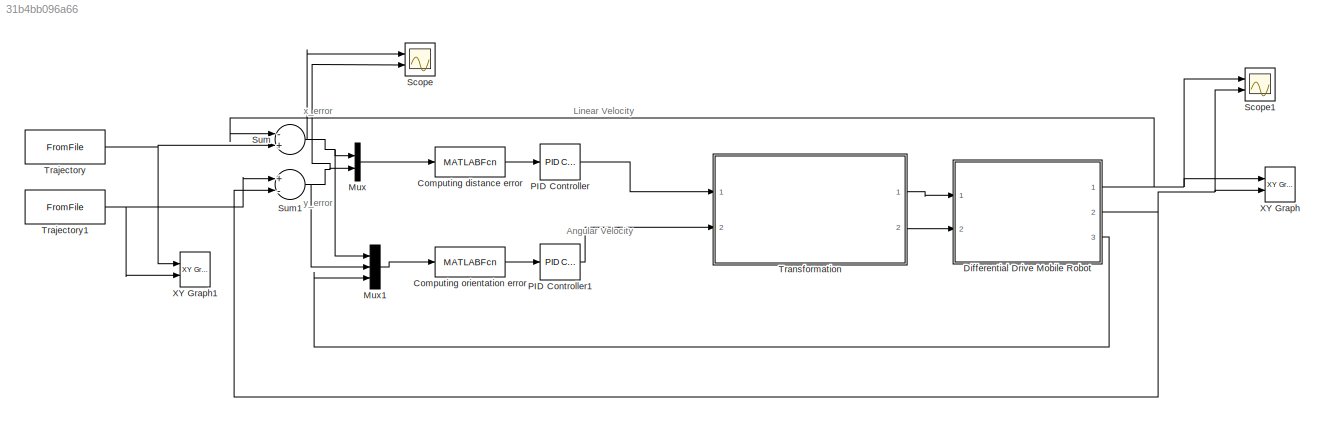
MODEL slx_31b4bb096a66
KIND model
CONFIG AbsTol = auto
CONFIG FixedStep = 0.1
CONFIG MaxStep = auto
CONFIG MinStep = auto
CONFIG RelTol = 1e-3
CONFIG SampleTimeConstraint = Unconstrained
CONFIG Solver = ode3
CONFIG SolverMode = Auto
CONFIG SolverName = ode3
CONFIG StartTime = 0.0
CONFIG StopTime = 1000
BLOCK [MATLABFcn] Computing distance error
  MATLABFcn = distance_error
  OutputDimensions = 1
  Ports = [1, 1]
BLOCK [MATLABFcn] Computing orientation error
  MATLABFcn = orientation_error
  OutputDimensions = 1
  Ports = [1, 1]
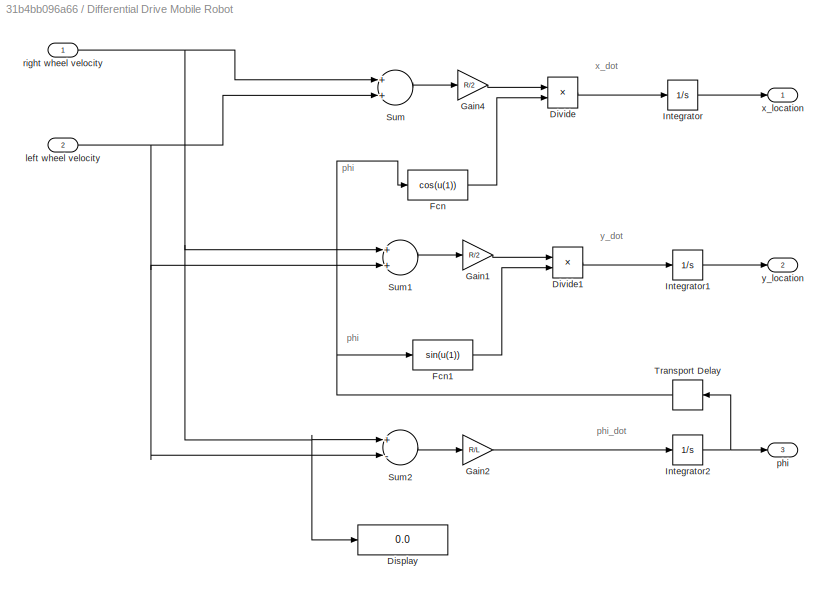
BLOCK [SubSystem] Differential Drive Mobile Robot
  Ports = [2, 3]
  RequestExecContextInheritance = off
BLOCK [Display] Differential Drive Mobile Robot/Display
  Decimation = 1
  Ports = [1]
BLOCK [Product] Differential Drive Mobile Robot/Divide
  InputSameDT = off
  Inputs = **
  OutDataTypeStr = Inherit: Inherit via internal rule
  Ports = [2, 1]
  RndMeth = Floor
  SaturateOnIntegerOverflow = off
BLOCK [Product] Differential Drive Mobile Robot/Divide1
  InputSameDT = off
  Inputs = **
  OutDataTypeStr = Inherit: Inherit via internal rule
  Ports = [2, 1]
  RndMeth = Floor
  SaturateOnIntegerOverflow = off
BLOCK [Fcn] Differential Drive Mobile Robot/Fcn
  Expr = cos(u(1))
BLOCK [Fcn] Differential Drive Mobile Robot/Fcn1
  Expr = sin(u(1))
BLOCK [Gain] Differential Drive Mobile Robot/Gain1
  Gain = R/2
  OutDataTypeStr = Inherit: Inherit via internal rule
  ParamDataTypeStr = Inherit: Inherit via internal rule
  SaturateOnIntegerOverflow = off
BLOCK [Gain] Differential Drive Mobile Robot/Gain2
  Gain = R/L
  OutDataTypeStr = Inherit: Inherit via internal rule
  ParamDataTypeStr = Inherit: Inherit via internal rule
  SaturateOnIntegerOverflow = off
BLOCK [Gain] Differential Drive Mobile Robot/Gain4
  Gain = R/2
  OutDataTypeStr = Inherit: Inherit via internal rule
  ParamDataTypeStr = Inherit: Inherit via internal rule
  SaturateOnIntegerOverflow = off
BLOCK [Integrator] Differential Drive Mobile Robot/Integrator
  Ports = [1, 1]
BLOCK [Integrator] Differential Drive Mobile Robot/Integrator1
  Ports = [1, 1]
BLOCK [Integrator] Differential Drive Mobile Robot/Integrator2
  Ports = [1, 1]
BLOCK [Sum] Differential Drive Mobile Robot/Sum
  InputSameDT = off
  OutDataTypeStr = Inherit: Inherit via internal rule
  Ports = [2, 1]
  SaturateOnIntegerOverflow = off
BLOCK [Sum] Differential Drive Mobile Robot/Sum1
  InputSameDT = off
  OutDataTypeStr = Inherit: Inherit via internal rule
  Ports = [2, 1]
  SaturateOnIntegerOverflow = off
BLOCK [Sum] Differential Drive Mobile Robot/Sum2
  InputSameDT = off
  Inputs = +-
  OutDataTypeStr = Inherit: Inherit via internal rule
  Ports = [2, 1]
  SaturateOnIntegerOverflow = off
BLOCK [TransportDelay] Differential Drive Mobile Robot/Transport Delay
  Ports = [1, 1]
BLOCK [Inport] Differential Drive Mobile Robot/left wheel velocity
  IconDisplay = Port number
  Port = 2
BLOCK [Outport] Differential Drive Mobile Robot/phi
  IconDisplay = Port number
  Port = 3
BLOCK [Inport] Differential Drive Mobile Robot/right wheel velocity
  IconDisplay = Port number
BLOCK [Outport] Differential Drive Mobile Robot/x_location
  IconDisplay = Port number
BLOCK [Outport] Differential Drive Mobile Robot/y_location
  IconDisplay = Port number
  Port = 2
BLOCK [Mux] Mux
  DisplayOption = bar
  Inputs = 2
  Ports = [2, 1]
BLOCK [Mux] Mux1
  DisplayOption = bar
  Inputs = 3
  Ports = [3, 1]
BLOCK [Reference] PID Controller  REF=simulink/Continuous/PID Controller
  AntiWindupMode = none
  Controller = PID
  ControllerParametersSource = internal
  D = -0.0162580875537082
  DGainOutDataTypeStr = Inherit: Inherit via internal rule
  DOutDataTypeStr = Inherit: Inherit via internal rule
  DOutMax = []
  DOutMin = []
  DParamDataTypeStr = Inherit: Inherit via internal rule
  DParamMax = []
  DParamMin = []
  DProdOutDataTypeStr = Inherit: Inherit via internal rule
  DifferentiatorICPrevScaledInput = 0
  DifferentiatorOutDataTypeStr = Inherit: Inherit via internal rule
  DifferentiatorOutMax = []
  DifferentiatorOutMin = []
  ExternalReset = none
  FilterContinuousStateAttributes = ''
  FilterMethod = Forward Euler
  FilterOutDataTypeStr = Inherit: Inherit via internal rule
  FilterOutMax = []
  FilterOutMin = []
  FilterRTWStateStorageClass = Auto
  FilterStateMustResolveToSignalObject = off
  Form = Parallel
  I = 0.00100836074716022
  IGainOutDataTypeStr = Inherit: Inherit via internal rule
  IOutDataTypeStr = Inherit: Inherit via internal rule
  IOutMax = []
  IOutMin = []
  IParamDataTypeStr = Inherit: Inherit via internal rule
  IParamMax = []
  IParamMin = []
  IProdOutDataTypeStr = Inherit: Inherit via internal rule
  IgnoreLimit = off
  InitialConditionForFilter = 0
  InitialConditionForIntegrator = 0
  InitialConditionSource = internal
  IntegratorContinuousStateAttributes = ''
  IntegratorMethod = Forward Euler
  IntegratorOutDataTypeStr = Inherit: Inherit via internal rule
  IntegratorOutMax = []
  IntegratorOutMin = []
  IntegratorRTWStateStorageClass = Auto
  IntegratorStateMustResolveToSignalObject = off
  Kb = 1
  KbOutDataTypeStr = Inherit: Inherit via internal rule
  KbOutMax = []
  KbOutMin = []
  KbParamDataTypeStr = Inherit: Inherit via internal rule
  KbParamMax = []
  KbParamMin = []
  Kt = 1
  KtOutDataTypeStr = Inherit: Inherit via internal rule
  KtOutMax = []
  KtOutMin = []
  KtParamDataTypeStr = Inherit: Inherit via internal rule
  KtParamMax = []
  KtParamMin = []
  LimitOutput = off
  LinearizeAsGain = on
  LockScale = off
  LowerSaturationLimit = -inf
  N = 1.13639880092487
  NGainOutDataTypeStr = Inherit: Inherit via internal rule
  NOutDataTypeStr = Inherit: Inherit via internal rule
  NOutMax = []
  NOutMin = []
  NParamDataTypeStr = Inherit: Inherit via internal rule
  NParamMax = []
  NParamMin = []
  NProdOutDataTypeStr = Inherit: Inherit via internal rule
  P = 0.0504359921516874
  PGainOutDataTypeStr = Inherit: Inherit via internal rule
  POutDataTypeStr = Inherit: Inherit via internal rule
  POutMax = []
  POutMin = []
  PParamDataTypeStr = Inherit: Inherit via internal rule
  PParamMax = []
  PParamMin = []
  PProdOutDataTypeStr = Inherit: Inherit via internal rule
  Ports = [1, 1]
  RndMeth = Floor
  SampleTime = -1
  SaturateOnIntegerOverflow = off
  SaturationOutDataTypeStr = Inherit: Same as input
  SaturationOutMax = []
  SaturationOutMin = []
  SourceBlock = simulink/Continuous/PID Controller
  SourceType = PID 1dof
  SumAccumDataTypeStr = Inherit: Inherit via internal rule
  SumDAccumDataTypeStr = Inherit: Inherit via internal rule
  SumDOutDataTypeStr = Inherit: Inherit via internal rule
  SumDOutMax = []
  SumDOutMin = []
  SumI1AccumDataTypeStr = Inherit: Inherit via internal rule
  SumI1OutDataTypeStr = Inherit: Inherit via internal rule
  SumI1OutMax = []
  SumI1OutMin = []
  SumI2AccumDataTypeStr = Inherit: Inherit via internal rule
  SumI2OutDataTypeStr = Inherit: Inherit via internal rule
  SumI2OutMax = []
  SumI2OutMin = []
  SumI3AccumDataTypeStr = Inherit: Inherit via internal rule
  SumI3OutDataTypeStr = Inherit: Inherit via internal rule
  SumI3OutMax = []
  SumI3OutMin = []
  SumOutDataTypeStr = Inherit: Inherit via internal rule
  SumOutMax = []
  SumOutMin = []
  TimeDomain = Continuous-time
  TrackingMode = off
  UpperSaturationLimit = inf
  UseFilter = on
  ZeroCross = on
BLOCK [Reference] PID Controller1  REF=simulink/Continuous/PID Controller
  AntiWindupMode = none
  Controller = PID
  ControllerParametersSource = internal
  D = 0.479966099643471
  DGainOutDataTypeStr = Inherit: Inherit via internal rule
  DOutDataTypeStr = Inherit: Inherit via internal rule
  DOutMax = []
  DOutMin = []
  DParamDataTypeStr = Inherit: Inherit via internal rule
  DParamMax = []
  DParamMin = []
  DProdOutDataTypeStr = Inherit: Inherit via internal rule
  DifferentiatorICPrevScaledInput = 0
  DifferentiatorOutDataTypeStr = Inherit: Inherit via internal rule
  DifferentiatorOutMax = []
  DifferentiatorOutMin = []
  ExternalReset = none
  FilterContinuousStateAttributes = ''
  FilterMethod = Forward Euler
  FilterOutDataTypeStr = Inherit: Inherit via internal rule
  FilterOutMax = []
  FilterOutMin = []
  FilterRTWStateStorageClass = Auto
  FilterStateMustResolveToSignalObject = off
  Form = Parallel
  I = 5.40874878904373e-08
  IGainOutDataTypeStr = Inherit: Inherit via internal rule
  IOutDataTypeStr = Inherit: Inherit via internal rule
  IOutMax = []
  IOutMin = []
  IParamDataTypeStr = Inherit: Inherit via internal rule
  IParamMax = []
  IParamMin = []
  IProdOutDataTypeStr = Inherit: Inherit via internal rule
  IgnoreLimit = off
  InitialConditionForFilter = 0
  InitialConditionForIntegrator = 0
  InitialConditionSource = internal
  IntegratorContinuousStateAttributes = ''
  IntegratorMethod = Forward Euler
  IntegratorOutDataTypeStr = Inherit: Inherit via internal rule
  IntegratorOutMax = []
  IntegratorOutMin = []
  IntegratorRTWStateStorageClass = Auto
  IntegratorStateMustResolveToSignalObject = off
  Kb = 1
  KbOutDataTypeStr = Inherit: Inherit via internal rule
  KbOutMax = []
  KbOutMin = []
  KbParamDataTypeStr = Inherit: Inherit via internal rule
  KbParamMax = []
  KbParamMin = []
  Kt = 1
  KtOutDataTypeStr = Inherit: Inherit via internal rule
  KtOutMax = []
  KtOutMin = []
  KtParamDataTypeStr = Inherit: Inherit via internal rule
  KtParamMax = []
  KtParamMin = []
  LimitOutput = off
  LinearizeAsGain = on
  LockScale = off
  LowerSaturationLimit = -inf
  N = 3.01968832345364
  NGainOutDataTypeStr = Inherit: Inherit via internal rule
  NOutDataTypeStr = Inherit: Inherit via internal rule
  NOutMax = []
  NOutMin = []
  NParamDataTypeStr = Inherit: Inherit via internal rule
  NParamMax = []
  NParamMin = []
  NProdOutDataTypeStr = Inherit: Inherit via internal rule
  P = 0.000344915523931585
  PGainOutDataTypeStr = Inherit: Inherit via internal rule
  POutDataTypeStr = Inherit: Inherit via internal rule
  POutMax = []
  POutMin = []
  PParamDataTypeStr = Inherit: Inherit via internal rule
  PParamMax = []
  PParamMin = []
  PProdOutDataTypeStr = Inherit: Inherit via internal rule
  Ports = [1, 1]
  RndMeth = Floor
  SampleTime = -1
  SaturateOnIntegerOverflow = off
  SaturationOutDataTypeStr = Inherit: Same as input
  SaturationOutMax = []
  SaturationOutMin = []
  SourceBlock = simulink/Continuous/PID Controller
  SourceType = PID 1dof
  SumAccumDataTypeStr = Inherit: Inherit via internal rule
  SumDAccumDataTypeStr = Inherit: Inherit via internal rule
  SumDOutDataTypeStr = Inherit: Inherit via internal rule
  SumDOutMax = []
  SumDOutMin = []
  SumI1AccumDataTypeStr = Inherit: Inherit via internal rule
  SumI1OutDataTypeStr = Inherit: Inherit via internal rule
  SumI1OutMax = []
  SumI1OutMin = []
  SumI2AccumDataTypeStr = Inherit: Inherit via internal rule
  SumI2OutDataTypeStr = Inherit: Inherit via internal rule
  SumI2OutMax = []
  SumI2OutMin = []
  SumI3AccumDataTypeStr = Inherit: Inherit via internal rule
  SumI3OutDataTypeStr = Inherit: Inherit via internal rule
  SumI3OutMax = []
  SumI3OutMin = []
  SumOutDataTypeStr = Inherit: Inherit via internal rule
  SumOutMax = []
  SumOutMin = []
  TimeDomain = Continuous-time
  TrackingMode = off
  UpperSaturationLimit = inf
  UseFilter = on
  ZeroCross = on
BLOCK [Scope] Scope
  Floating = off
  NumInputPorts = 2
  Ports = [2]
  YMax = 5~5
  YMin = -5~-5
BLOCK [Scope] Scope1
  Floating = off
  NumInputPorts = 2
  Ports = [2]
  SaveName = ScopeData1
  YMax = 90000~5000
  YMin = 0~-6500
BLOCK [Sum] Sum
  Inputs = -+
  OutDataTypeStr = Inherit: Inherit via internal rule
  Ports = [2, 1]
  SaturateOnIntegerOverflow = off
BLOCK [Sum] Sum1
  InputSameDT = off
  Inputs = +-
  OutDataTypeStr = Inherit: Inherit via internal rule
  Ports = [2, 1]
  SaturateOnIntegerOverflow = off
BLOCK [FromFile] Trajectory
  FileName = x_trajectory.mat
  SampleTime = 1
BLOCK [FromFile] Trajectory1
  FileName = y_trajectory.mat
  SampleTime = 1
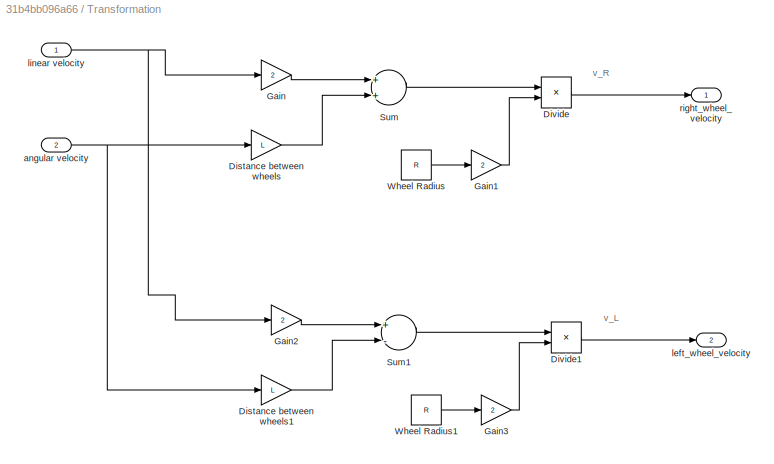
BLOCK [SubSystem] Transformation
  Ports = [2, 2]
  RequestExecContextInheritance = off
BLOCK [Gain] Transformation/Distance between wheels
  Gain = L
  OutDataTypeStr = Inherit: Inherit via internal rule
  ParamDataTypeStr = Inherit: Inherit via internal rule
  SaturateOnIntegerOverflow = off
BLOCK [Gain] Transformation/Distance between wheels1
  Gain = L
  OutDataTypeStr = Inherit: Inherit via internal rule
  ParamDataTypeStr = Inherit: Inherit via internal rule
  SaturateOnIntegerOverflow = off
BLOCK [Product] Transformation/Divide
  InputSameDT = off
  Inputs = */
  OutDataTypeStr = Inherit: Inherit via internal rule
  Ports = [2, 1]
  RndMeth = Floor
  SaturateOnIntegerOverflow = off
BLOCK [Product] Transformation/Divide1
  InputSameDT = off
  Inputs = */
  OutDataTypeStr = Inherit: Inherit via internal rule
  Ports = [2, 1]
  RndMeth = Floor
  SaturateOnIntegerOverflow = off
BLOCK [Gain] Transformation/Gain
  Gain = 2
  OutDataTypeStr = Inherit: Inherit via internal rule
  ParamDataTypeStr = Inherit: Inherit via internal rule
  SaturateOnIntegerOverflow = off
BLOCK [Gain] Transformation/Gain1
  Gain = 2
  OutDataTypeStr = Inherit: Inherit via internal rule
  ParamDataTypeStr = Inherit: Inherit via internal rule
  SaturateOnIntegerOverflow = off
BLOCK [Gain] Transformation/Gain2
  Gain = 2
  OutDataTypeStr = Inherit: Inherit via internal rule
  ParamDataTypeStr = Inherit: Inherit via internal rule
  SaturateOnIntegerOverflow = off
BLOCK [Gain] Transformation/Gain3
  Gain = 2
  OutDataTypeStr = Inherit: Inherit via internal rule
  ParamDataTypeStr = Inherit: Inherit via internal rule
  SaturateOnIntegerOverflow = off
BLOCK [Sum] Transformation/Sum
  InputSameDT = off
  OutDataTypeStr = Inherit: Inherit via internal rule
  Ports = [2, 1]
  SaturateOnIntegerOverflow = off
BLOCK [Sum] Transformation/Sum1
  InputSameDT = off
  Inputs = +-
  OutDataTypeStr = Inherit: Inherit via internal rule
  Ports = [2, 1]
  SaturateOnIntegerOverflow = off
BLOCK [Constant] Transformation/Wheel Radius
  Value = R
BLOCK [Constant] Transformation/Wheel Radius1
  Value = R
BLOCK [Inport] Transformation/angular velocity
  IconDisplay = Port number
  Port = 2
BLOCK [Outport] Transformation/left_wheel_velocity
  IconDisplay = Port number
  Port = 2
BLOCK [Inport] Transformation/linear velocity
  IconDisplay = Port number
BLOCK [Outport] Transformation/right_wheel_velocity
  IconDisplay = Port number
BLOCK [Reference] XY Graph  REF=simulink/Sinks/XY Graph
  Ports = [2]
  SourceBlock = simulink/Sinks/XY Graph
  SourceType = XY scope.
  st = 1
  xmax = 30
  xmin = 0
  ymax = 30
  ymin = 0
BLOCK [Reference] XY Graph1  REF=simulink/Sinks/XY Graph
  Ports = [2]
  SourceBlock = simulink/Sinks/XY Graph
  SourceType = XY scope.
  st = 1
  xmax = 30
  xmin = 0
  ymax = 30
  ymin = 0
ANNOTATION (root): Angular Velocity
ANNOTATION (root): Linear Velocity
ANNOTATION (root): x_error
ANNOTATION (root): y_error
ANNOTATION Differential Drive Mobile Robot: phi
ANNOTATION Differential Drive Mobile Robot: phi_dot
ANNOTATION Differential Drive Mobile Robot: x_dot
ANNOTATION Differential Drive Mobile Robot: y_dot
ANNOTATION Transformation: v_L
ANNOTATION Transformation: v_R
LINE Computing distance error:1 -> PID Controller:1
LINE Computing orientation error:1 -> PID Controller1:1
LINE Differential Drive Mobile Robot/Divide1:1 -> Differential Drive Mobile Robot/Integrator1:1
LINE Differential Drive Mobile Robot/Divide:1 -> Differential Drive Mobile Robot/Integrator:1
LINE Differential Drive Mobile Robot/Fcn1:1 -> Differential Drive Mobile Robot/Divide1:2
LINE Differential Drive Mobile Robot/Fcn:1 -> Differential Drive Mobile Robot/Divide:2
LINE Differential Drive Mobile Robot/Gain1:1 -> Differential Drive Mobile Robot/Divide1:1
LINE Differential Drive Mobile Robot/Gain2:1 -> Differential Drive Mobile Robot/Integrator2:1
LINE Differential Drive Mobile Robot/Gain4:1 -> Differential Drive Mobile Robot/Divide:1
LINE Differential Drive Mobile Robot/Integrator1:1 -> Differential Drive Mobile Robot/y_location:1
NET Differential Drive Mobile Robot/Integrator2:1 -> Differential Drive Mobile Robot/Transport Delay:1, Differential Drive Mobile Robot/phi:1
LINE Differential Drive Mobile Robot/Integrator:1 -> Differential Drive Mobile Robot/x_location:1
LINE Differential Drive Mobile Robot/Sum1:1 -> Differential Drive Mobile Robot/Gain1:1
LINE Differential Drive Mobile Robot/Sum2:1 -> Differential Drive Mobile Robot/Gain2:1
LINE Differential Drive Mobile Robot/Sum:1 -> Differential Drive Mobile Robot/Gain4:1
NET Differential Drive Mobile Robot/Transport Delay:1 -> Differential Drive Mobile Robot/Fcn1:1, Differential Drive Mobile Robot/Fcn:1
NET Differential Drive Mobile Robot/left wheel velocity:1 -> Differential Drive Mobile Robot/Sum1:2, Differential Drive Mobile Robot/Sum2:2, Differential Drive Mobile Robot/Sum:2
NET Differential Drive Mobile Robot/right wheel velocity:1 -> Differential Drive Mobile Robot/Display:1, Differential Drive Mobile Robot/Sum1:1, Differential Drive Mobile Robot/Sum2:1, Differential Drive Mobile Robot/Sum:1
NET Differential Drive Mobile Robot:1 -> Scope1:1, Sum:1, XY Graph:1
NET Differential Drive Mobile Robot:2 -> Scope1:2, Sum1:2, XY Graph:2
LINE Differential Drive Mobile Robot:3 -> Mux1:3
LINE Mux1:1 -> Computing orientation error:1
LINE Mux:1 -> Computing distance error:1
LINE PID Controller1:1 -> Transformation:2
LINE PID Controller:1 -> Transformation:1
NET Sum1:1 -> Mux1:2, Mux:2, Scope:2
NET Sum:1 -> Mux1:1, Mux:1, Scope:1
NET Trajectory1:1 -> Sum1:1, XY Graph1:2
NET Trajectory:1 -> Sum:2, XY Graph1:1
LINE Transformation/Distance between wheels1:1 -> Transformation/Sum1:2
LINE Transformation/Distance between wheels:1 -> Transformation/Sum:2
LINE Transformation/Divide1:1 -> Transformation/left_wheel_velocity:1
LINE Transformation/Divide:1 -> Transformation/right_wheel_velocity:1
LINE Transformation/Gain1:1 -> Transformation/Divide:2
LINE Transformation/Gain2:1 -> Transformation/Sum1:1
LINE Transformation/Gain3:1 -> Transformation/Divide1:2
LINE Transformation/Gain:1 -> Transformation/Sum:1
LINE Transformation/Sum1:1 -> Transformation/Divide1:1
LINE Transformation/Sum:1 -> Transformation/Divide:1
LINE Transformation/Wheel Radius1:1 -> Transformation/Gain3:1
LINE Transformation/Wheel Radius:1 -> Transformation/Gain1:1
NET Transformation/angular velocity:1 -> Transformation/Distance between wheels1:1, Transformation/Distance between wheels:1
NET Transformation/linear velocity:1 -> Transformation/Gain2:1, Transformation/Gain:1
LINE Transformation:1 -> Differential Drive Mobile Robot:1
LINE Transformation:2 -> Differential Drive Mobile Robot:2
note: NET lines group one-source signal fan-out (src -> all destinations, sorted); 1:1 wires keep LINE
